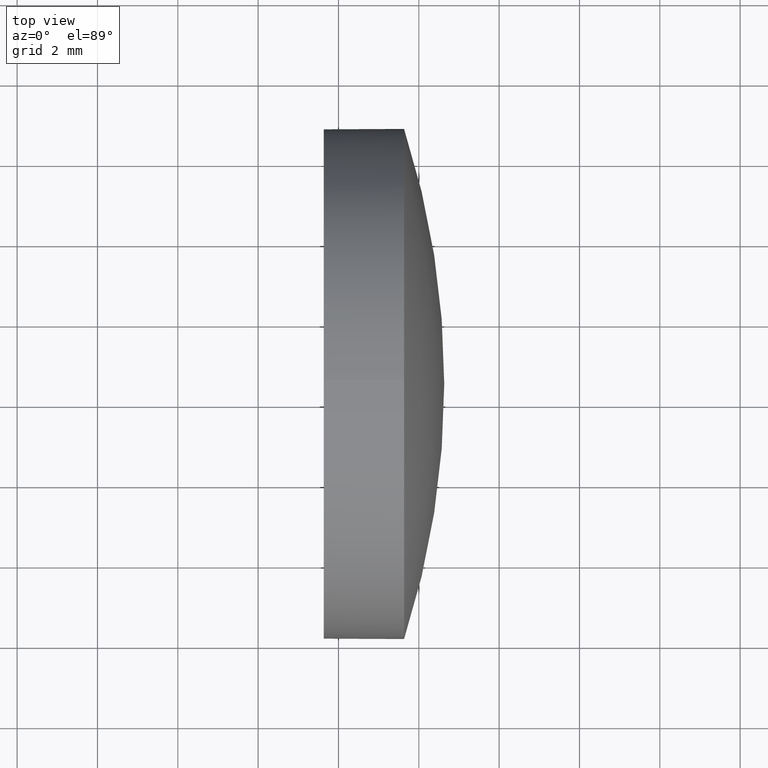
[diagram: clean part render]
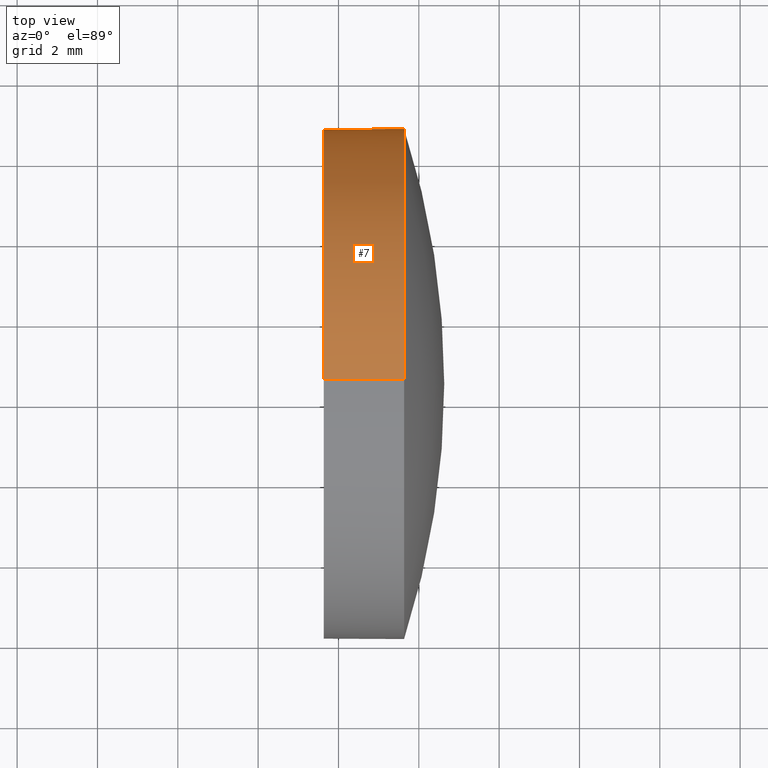
[diagram: same view with one face highlighted and labeled with its STEP entity id]
A machine part, top view. The second image highlights one B-rep face of the part: STEP entity #7.
In plain terms, the highlighted cylindrical surface (partial cylindrical patch) has radius 6.35 mm, axis along (-1, -0, -0).
Its self-contained STEP definition (entity closure, byte-faithful):
#7 = ADVANCED_FACE ( 'NONE', ( #78 ), #27, .T. ) ;
#11 = VERTEX_POINT ( 'NONE', #99 ) ;
#21 = CIRCLE ( 'NONE', #79, 6.349999999999994300 ) ;
#25 = EDGE_LOOP ( 'NONE', ( #141, #36, #112, #94, #28 ) ) ;
#27 = CYLINDRICAL_SURFACE ( 'NONE', #42, 6.349999999999994300 ) ;
#28 = ORIENTED_EDGE ( 'NONE', *, *, #146, .T. ) ;
#29 = DIRECTION ( 'NONE',  ( 0.0000000000000000000, 0.0000000000000000000, 1.000000000000000000 ) ) ;
#35 = LINE ( 'NONE', #174, #113 ) ;
#36 = ORIENTED_EDGE ( 'NONE', *, *, #65, .T. ) ;
#39 = EDGE_CURVE ( 'NONE', #106, #11, #64, .T. ) ;
#42 = AXIS2_PLACEMENT_3D ( 'NONE', #54, #87, #101 ) ;
#43 = CARTESIAN_POINT ( 'NONE',  ( 231.6334021862494400, 130.4671098528243900, 6.349999999999994300 ) ) ;
#45 = CARTESIAN_POINT ( 'NONE',  ( 231.6334021862494400, 130.4671098528243900, 0.0000000000000000000 ) ) ;
#48 = VERTEX_POINT ( 'NONE', #104 ) ;
#50 = VECTOR ( 'NONE', #68, 1000.000000000000000 ) ;
#54 = CARTESIAN_POINT ( 'NONE',  ( 229.3728710403949800, 130.4671098528243900, 0.0000000000000000000 ) ) ;
#59 = DIRECTION ( 'NONE',  ( -1.000000000000000000, -0.0000000000000000000, -0.0000000000000000000 ) ) ;
#62 = AXIS2_PLACEMENT_3D ( 'NONE', #45, #59, #29 ) ;
#64 = CIRCLE ( 'NONE', #62, 6.349999999999994300 ) ;
#65 = EDGE_CURVE ( 'NONE', #186, #11, #185, .T. ) ;
#68 = DIRECTION ( 'NONE',  ( -1.000000000000000000, -0.0000000000000000000, -0.0000000000000000000 ) ) ;
#74 = CARTESIAN_POINT ( 'NONE',  ( 233.6334021862494400, 136.8171098528243900, 0.0000000000000000000 ) ) ;
#76 = CARTESIAN_POINT ( 'NONE',  ( 233.6334021862494400, 130.4671098528243900, 0.0000000000000000000 ) ) ;
#78 = FACE_OUTER_BOUND ( 'NONE', #25, .T. ) ;
#79 = AXIS2_PLACEMENT_3D ( 'NONE', #76, #89, #90 ) ;
#80 = CARTESIAN_POINT ( 'NONE',  ( 233.6334021862494400, 130.4671098528243900, -6.349999999999994300 ) ) ;
#87 = DIRECTION ( 'NONE',  ( -1.000000000000000000, -0.0000000000000000000, -0.0000000000000000000 ) ) ;
#89 = DIRECTION ( 'NONE',  ( -1.000000000000000000, -0.0000000000000000000, -0.0000000000000000000 ) ) ;
#90 = DIRECTION ( 'NONE',  ( 0.0000000000000000000, 0.0000000000000000000, 1.000000000000000000 ) ) ;
#91 = EDGE_CURVE ( 'NONE', #144, #186, #93, .T. ) ;
#93 = CIRCLE ( 'NONE', #165, 6.349999999999994300 ) ;
#94 = ORIENTED_EDGE ( 'NONE', *, *, #102, .F. ) ;
#99 = CARTESIAN_POINT ( 'NONE',  ( 231.6334021862494400, 130.4671098528243900, -6.349999999999994300 ) ) ;
#101 = DIRECTION ( 'NONE',  ( 0.0000000000000000000, 0.0000000000000000000, 1.000000000000000000 ) ) ;
#102 = EDGE_CURVE ( 'NONE', #48, #106, #35, .T. ) ;
#103 = DIRECTION ( 'NONE',  ( -1.000000000000000000, -0.0000000000000000000, -0.0000000000000000000 ) ) ;
#104 = CARTESIAN_POINT ( 'NONE',  ( 233.6334021862494400, 130.4671098528243900, 6.349999999999994300 ) ) ;
#106 = VERTEX_POINT ( 'NONE', #43 ) ;
#112 = ORIENTED_EDGE ( 'NONE', *, *, #39, .F. ) ;
#113 = VECTOR ( 'NONE', #130, 1000.000000000000000 ) ;
#130 = DIRECTION ( 'NONE',  ( -1.000000000000000000, -0.0000000000000000000, -0.0000000000000000000 ) ) ;
#141 = ORIENTED_EDGE ( 'NONE', *, *, #91, .T. ) ;
#142 = DIRECTION ( 'NONE',  ( 0.0000000000000000000, 0.0000000000000000000, 1.000000000000000000 ) ) ;
#144 = VERTEX_POINT ( 'NONE', #74 ) ;
#145 = CARTESIAN_POINT ( 'NONE',  ( 233.6334021862494400, 130.4671098528243900, 0.0000000000000000000 ) ) ;
#146 = EDGE_CURVE ( 'NONE', #48, #144, #21, .T. ) ;
#165 = AXIS2_PLACEMENT_3D ( 'NONE', #145, #103, #142 ) ;
#167 = CARTESIAN_POINT ( 'NONE',  ( 229.3728710403949800, 130.4671098528243900, -6.349999999999994300 ) ) ;
#174 = CARTESIAN_POINT ( 'NONE',  ( 229.3728710403949800, 130.4671098528243900, 6.349999999999994300 ) ) ;
#185 = LINE ( 'NONE', #167, #50 ) ;
#186 = VERTEX_POINT ( 'NONE', #80 ) ;